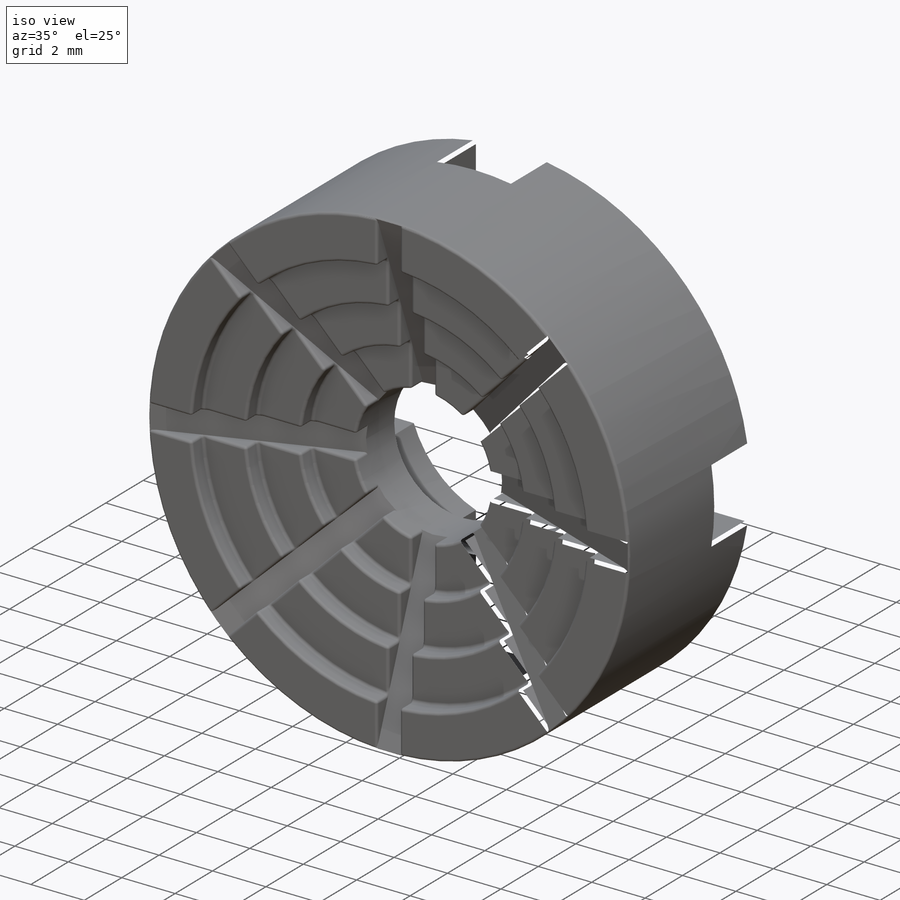
[diagram: iso view]
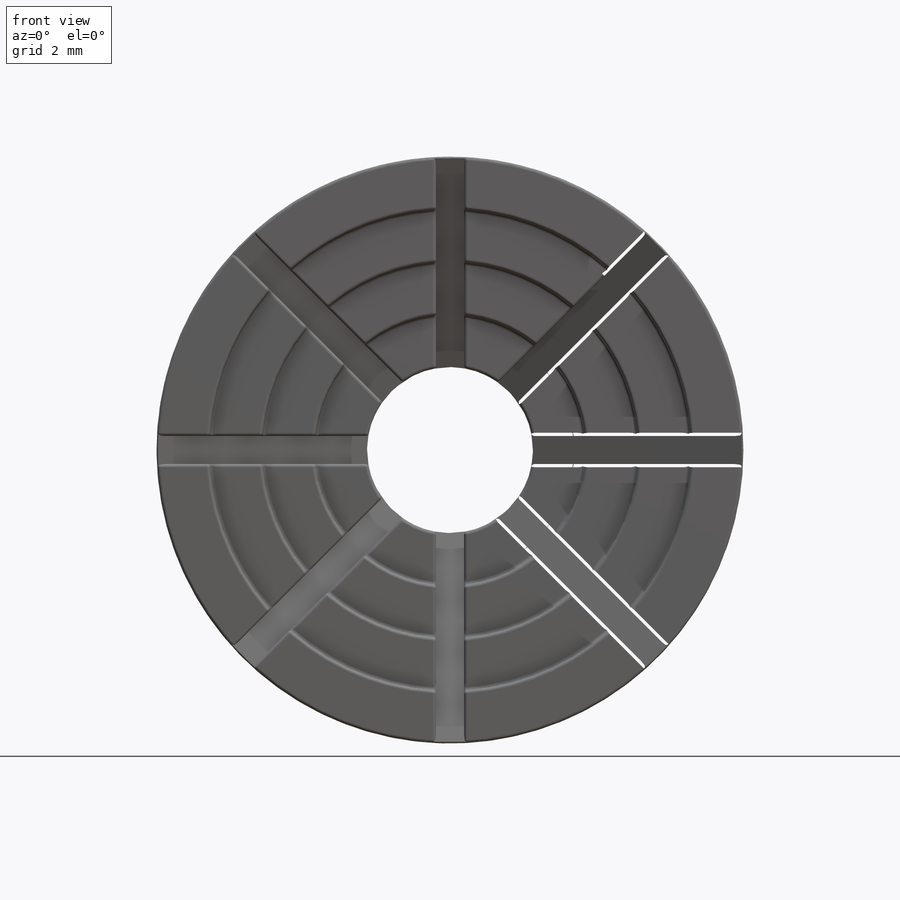
[diagram: front view]
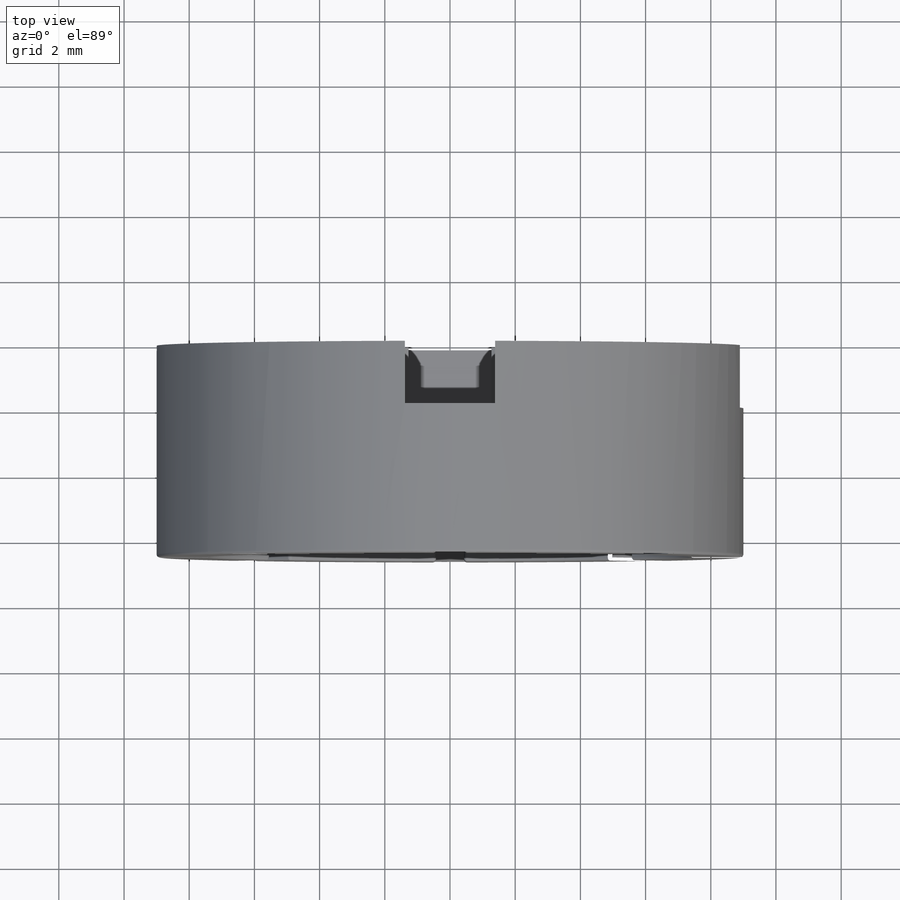
[diagram: top view]
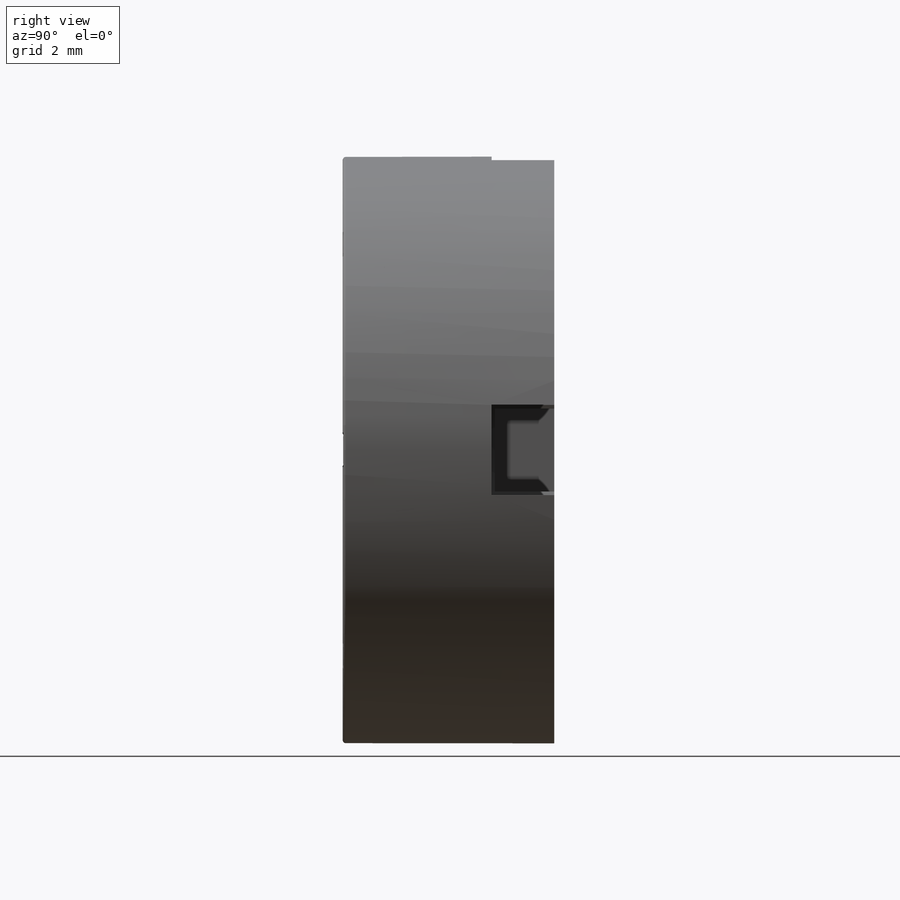
[diagram: right view]
SOLIDWORKS PART (.sldprt)
format: sldprt  version: not decoded by parser v0  size: 1,933,824 bytes
history: native  units: mm
features: sketch x7, cut_extrude x4, fillet x3, plane x2, material x1, extrude x1, cut_revolve x1, pattern_circular x1 (+16 scaffold rows collapsed)
feature tree (36):
  scaffold x16  (default folders/planes/origin — collapsed)
  material  "Material <not specified>"
  sketch  "Sketch1"  dims[D1=18.0mm]
  extrude  "Extrude1"  Depth=6.5913mm
  plane  "Plane1"  Offset=2.44mm
  sketch  "Sketch3"  dims[c1.D2=0.0mm c1.D1=2.44mm c2.D2=1.48mm c2.D3=2.45mm]
  cut_revolve  "Cut-Revolve5"  Angle=360deg
  plane  "Plane3"
  fillet  "Fillet3"  Radius=0.099219mm
  sketch  "Sketch11"  dims[D1=0.43mm D2=0.43mm]
  cut_extrude  "Extrude7"  [1 undecoded]
  sketch  "3DSketch2"
  pattern_circular  "CirPattern1"  Count=8 Angle=360deg
  sketch  "Sketch13"  dims[D1=7.62mm]
  cut_extrude  "Extrude8"  Depth=2.54mm
  sketch  "Sketch15"  dims[D1=0.9144mm D2=1.27mm D3=1.27mm]
  cut_extrude  "Extrude10"  Depth=1.9177mm
  sketch  "Sketch14"  dims[D1=0.0mm]
  cut_extrude  "Extrude9"  [1 undecoded]
  fillet  "Fillet4"  Radius=0.099219mm
  fillet  "Fillet5"  Radius=0.099219mm
decode coverage: 14 of 17 modeling features carry decoded parameters
note: 2 parameter values undecoded
note: suppression state not decoded; provenance and decode notes live in map.json
